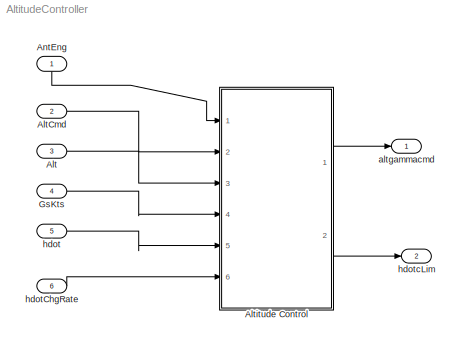
MODEL AltitudeController
KIND model
BLOCK [Inport] Alt
  IconDisplay = Port number
  OutDataTypeStr = double
  Port = 3
  SID = 3
  SignalType = real
BLOCK [Inport] AltCmd
  IconDisplay = Port number
  OutDataTypeStr = double
  Port = 2
  SID = 2
  SignalType = real
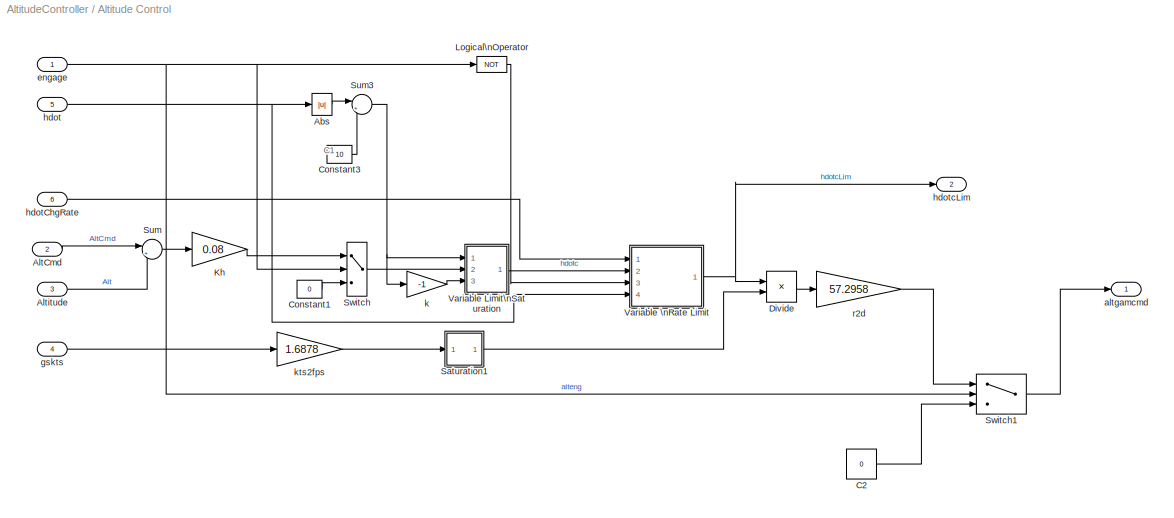
BLOCK [SubSystem] Altitude Control
  Ports = [6, 2]
  RequestExecContextInheritance = off
  SID = 7
  Variant = off
BLOCK [Abs] Altitude Control/Abs
  SID = 14
BLOCK [Inport] Altitude Control/AltCmd
  IconDisplay = Port number
  Port = 2
  SID = 9
BLOCK [Inport] Altitude Control/Altitude
  IconDisplay = Port number
  Port = 3
  SID = 10
BLOCK [Constant] Altitude Control/C2
  SID = 15
  Value = 0
BLOCK [Constant] Altitude Control/Constant1
  SID = 16
  Value = 0
BLOCK [Constant] Altitude Control/Constant3
  SID = 17
  Value = 10
BLOCK [Product] Altitude Control/Divide
  InputSameDT = off
  Inputs = */
  OutDataTypeStr = Inherit: Inherit via internal rule
  Ports = [2, 1]
  RndMeth = Floor
  SID = 18
  SaturateOnIntegerOverflow = off
BLOCK [Gain] Altitude Control/Kh
  Gain = 0.08
  OutDataTypeStr = Inherit: Inherit via internal rule
  ParamDataTypeStr = Inherit: Inherit via internal rule
  SID = 19
  SaturateOnIntegerOverflow = off
BLOCK [Logic] Altitude Control/Logical\nOperator
  Operator = NOT
  Ports = [1, 1]
  SID = 20
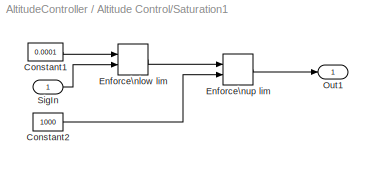
BLOCK [SubSystem] Altitude Control/Saturation1
  Ports = [1, 1]
  RequestExecContextInheritance = off
  SID = 21
  TreatAsAtomicUnit = on
  Variant = off
BLOCK [Constant] Altitude Control/Saturation1/Constant1
  SID = 23
  Value = 0.0001
BLOCK [Constant] Altitude Control/Saturation1/Constant2
  SID = 24
  Value = 1000
BLOCK [MinMax] Altitude Control/Saturation1/Enforce\nlow lim
  Function = max
  InputSameDT = off
  Inputs = 2
  Ports = [2, 1]
  SID = 25
  SaturateOnIntegerOverflow = off
BLOCK [MinMax] Altitude Control/Saturation1/Enforce\nup lim
  InputSameDT = off
  Inputs = 2
  Ports = [2, 1]
  SID = 26
  SaturateOnIntegerOverflow = off
BLOCK [Outport] Altitude Control/Saturation1/Out1
  IconDisplay = Port number
  SID = 27
BLOCK [Inport] Altitude Control/Saturation1/SigIn
  IconDisplay = Port number
  SID = 22
BLOCK [Sum] Altitude Control/Sum
  IconShape = round
  InputSameDT = off
  Inputs = |+-
  OutDataTypeStr = Inherit: Inherit via internal rule
  Ports = [2, 1]
  SID = 28
  SaturateOnIntegerOverflow = off
BLOCK [Sum] Altitude Control/Sum3
  IconShape = round
  Inputs = |++
  Ports = [2, 1]
  SID = 29
BLOCK [Switch] Altitude Control/Switch
  InputSameDT = off
  SID = 30
  SaturateOnIntegerOverflow = off
BLOCK [Switch] Altitude Control/Switch1
  Criteria = u2 > Threshold
  InputSameDT = off
  SID = 31
  SaturateOnIntegerOverflow = off
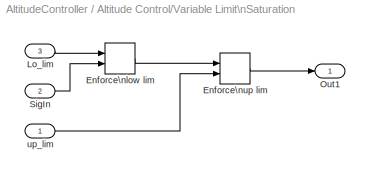
BLOCK [SubSystem] Altitude Control/Variable Limit\nSaturation
  Ports = [3, 1]
  RequestExecContextInheritance = off
  SID = 49
  TreatAsAtomicUnit = on
  Variant = off
BLOCK [MinMax] Altitude Control/Variable Limit\nSaturation/Enforce\nlow lim
  Function = max
  InputSameDT = off
  Inputs = 2
  Ports = [2, 1]
  SID = 53
  SaturateOnIntegerOverflow = off
BLOCK [MinMax] Altitude Control/Variable Limit\nSaturation/Enforce\nup lim
  InputSameDT = off
  Inputs = 2
  Ports = [2, 1]
  SID = 54
  SaturateOnIntegerOverflow = off
BLOCK [Inport] Altitude Control/Variable Limit\nSaturation/Lo_lim
  IconDisplay = Port number
  Port = 3
  SID = 52
BLOCK [Outport] Altitude Control/Variable Limit\nSaturation/Out1
  IconDisplay = Port number
  SID = 55
BLOCK [Inport] Altitude Control/Variable Limit\nSaturation/SigIn
  IconDisplay = Port number
  Port = 2
  SID = 51
BLOCK [Inport] Altitude Control/Variable Limit\nSaturation/up_lim
  IconDisplay = Port number
  SID = 50
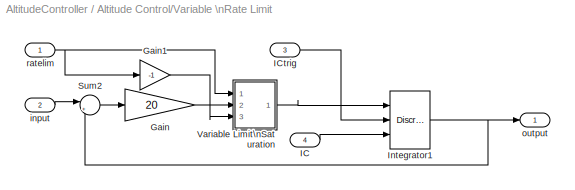
BLOCK [SubSystem] Altitude Control/Variable \nRate Limit
  Ports = [4, 1]
  RequestExecContextInheritance = off
  SID = 32
  TreatAsAtomicUnit = on
  Variant = off
BLOCK [Gain] Altitude Control/Variable \nRate Limit/Gain
  Gain = 20
  SID = 37
BLOCK [Gain] Altitude Control/Variable \nRate Limit/Gain1
  Gain = -1
  SID = 38
BLOCK [Inport] Altitude Control/Variable \nRate Limit/IC
  IconDisplay = Port number
  Port = 4
  SID = 36
BLOCK [Inport] Altitude Control/Variable \nRate Limit/ICtrig
  IconDisplay = Port number
  Port = 3
  SID = 35
BLOCK [DiscreteIntegrator] Altitude Control/Variable \nRate Limit/Integrator1
  ExternalReset = level
  ICPrevOutput = DiscIntNeverNeededParam
  ICPrevScaledInput = DiscIntNeverNeededParam
  InitialConditionSource = external
  Ports = [3, 1]
  SID = 39
  SampleTime = 0.1
BLOCK [Sum] Altitude Control/Variable \nRate Limit/Sum2
  IconShape = round
  InputSameDT = off
  Inputs = |+-
  OutDataTypeStr = Inherit: Inherit via internal rule
  Ports = [2, 1]
  SID = 40
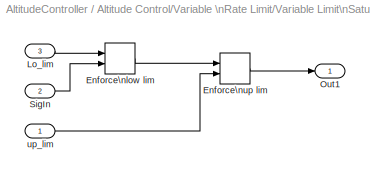
BLOCK [SubSystem] Altitude Control/Variable \nRate Limit/Variable Limit\nSaturation
  Ports = [3, 1]
  RequestExecContextInheritance = off
  SID = 41
  TreatAsAtomicUnit = on
  Variant = off
BLOCK [MinMax] Altitude Control/Variable \nRate Limit/Variable Limit\nSaturation/Enforce\nlow lim
  Function = max
  InputSameDT = off
  Inputs = 2
  Ports = [2, 1]
  SID = 45
  SaturateOnIntegerOverflow = off
BLOCK [MinMax] Altitude Control/Variable \nRate Limit/Variable Limit\nSaturation/Enforce\nup lim
  InputSameDT = off
  Inputs = 2
  Ports = [2, 1]
  SID = 46
  SaturateOnIntegerOverflow = off
BLOCK [Inport] Altitude Control/Variable \nRate Limit/Variable Limit\nSaturation/Lo_lim
  IconDisplay = Port number
  Port = 3
  SID = 44
BLOCK [Outport] Altitude Control/Variable \nRate Limit/Variable Limit\nSaturation/Out1
  IconDisplay = Port number
  SID = 47
BLOCK [Inport] Altitude Control/Variable \nRate Limit/Variable Limit\nSaturation/SigIn
  IconDisplay = Port number
  Port = 2
  SID = 43
BLOCK [Inport] Altitude Control/Variable \nRate Limit/Variable Limit\nSaturation/up_lim
  IconDisplay = Port number
  SID = 42
BLOCK [Inport] Altitude Control/Variable \nRate Limit/input
  IconDisplay = Port number
  OutDataTypeStr = double
  Port = 2
  SID = 34
BLOCK [Outport] Altitude Control/Variable \nRate Limit/output
  IconDisplay = Port number
  SID = 48
BLOCK [Inport] Altitude Control/Variable \nRate Limit/ratelim
  IconDisplay = Port number
  SID = 33
BLOCK [Outport] Altitude Control/altgamcmd
  IconDisplay = Port number
  SID = 59
BLOCK [Inport] Altitude Control/engage
  IconDisplay = Port number
  SID = 8
BLOCK [Inport] Altitude Control/gskts
  IconDisplay = Port number
  Port = 4
  SID = 11
BLOCK [Inport] Altitude Control/hdot
  IconDisplay = Port number
  Port = 5
  SID = 12
BLOCK [Inport] Altitude Control/hdotChgRate
  IconDisplay = Port number
  Port = 6
  SID = 13
BLOCK [Outport] Altitude Control/hdotcLim
  IconDisplay = Port number
  Port = 2
  SID = 62
BLOCK [Gain] Altitude Control/k
  Gain = -1
  OutDataTypeStr = Inherit: Inherit via internal rule
  ParamDataTypeStr = Inherit: Inherit via internal rule
  SID = 56
  SaturateOnIntegerOverflow = off
BLOCK [Gain] Altitude Control/kts2fps
  Gain = 1.6878
  OutDataTypeStr = Inherit: Inherit via internal rule
  ParamDataTypeStr = Inherit: Inherit via internal rule
  SID = 57
  SaturateOnIntegerOverflow = off
BLOCK [Gain] Altitude Control/r2d
  Gain = 57.2958
  OutDataTypeStr = Inherit: Inherit via internal rule
  ParamDataTypeStr = Inherit: Inherit via internal rule
  SID = 58
  SaturateOnIntegerOverflow = off
BLOCK [Inport] AntEng
  IconDisplay = Port number
  OutDataTypeStr = boolean
  SID = 1
BLOCK [Inport] GsKts
  IconDisplay = Port number
  OutDataTypeStr = double
  Port = 4
  SID = 4
  SignalType = real
BLOCK [Outport] altgammacmd
  IconDisplay = Port number
  SID = 61
BLOCK [Inport] hdot
  IconDisplay = Port number
  OutDataTypeStr = double
  Port = 5
  SID = 5
  SignalType = real
BLOCK [Inport] hdotChgRate
  IconDisplay = Port number
  OutDataTypeStr = double
  Port = 6
  SID = 6
  SignalType = real
BLOCK [Outport] hdotcLim
  IconDisplay = Port number
  Port = 2
  SID = 63
ANNOTATION Altitude Control: C1
LINE Alt:1 -> Altitude Control:3
LINE AltCmd:1 -> Altitude Control:2
LINE Altitude Control/Abs:1 -> Altitude Control/Sum3:1
LINE Altitude Control/AltCmd:1 -> Altitude Control/Sum:1
LINE Altitude Control/Altitude:1 -> Altitude Control/Sum:2
LINE Altitude Control/C2:1 -> Altitude Control/Switch1:3
LINE Altitude Control/Constant1:1 -> Altitude Control/Switch:3
LINE Altitude Control/Constant3:1 -> Altitude Control/Sum3:2
LINE Altitude Control/Divide:1 -> Altitude Control/r2d:1
LINE Altitude Control/Kh:1 -> Altitude Control/Switch:1
LINE Altitude Control/Logical\nOperator:1 -> Altitude Control/Variable \nRate Limit:3
LINE Altitude Control/Saturation1/Constant1:1 -> Altitude Control/Saturation1/Enforce\nlow lim:1
LINE Altitude Control/Saturation1/Constant2:1 -> Altitude Control/Saturation1/Enforce\nup lim:2
LINE Altitude Control/Saturation1/Enforce\nlow lim:1 -> Altitude Control/Saturation1/Enforce\nup lim:1
LINE Altitude Control/Saturation1/Enforce\nup lim:1 -> Altitude Control/Saturation1/Out1:1
LINE Altitude Control/Saturation1/SigIn:1 -> Altitude Control/Saturation1/Enforce\nlow lim:2
LINE Altitude Control/Saturation1:1 -> Altitude Control/Divide:2
NET Altitude Control/Sum3:1 -> Altitude Control/Variable Limit\nSaturation:1, Altitude Control/k:1
LINE Altitude Control/Sum:1 -> Altitude Control/Kh:1
LINE Altitude Control/Switch1:1 -> Altitude Control/altgamcmd:1
LINE Altitude Control/Switch:1 -> Altitude Control/Variable Limit\nSaturation:2
LINE Altitude Control/Variable Limit\nSaturation/Enforce\nlow lim:1 -> Altitude Control/Variable Limit\nSaturation/Enforce\nup lim:1
LINE Altitude Control/Variable Limit\nSaturation/Enforce\nup lim:1 -> Altitude Control/Variable Limit\nSaturation/Out1:1
LINE Altitude Control/Variable Limit\nSaturation/Lo_lim:1 -> Altitude Control/Variable Limit\nSaturation/Enforce\nlow lim:1
LINE Altitude Control/Variable Limit\nSaturation/SigIn:1 -> Altitude Control/Variable Limit\nSaturation/Enforce\nlow lim:2
LINE Altitude Control/Variable Limit\nSaturation/up_lim:1 -> Altitude Control/Variable Limit\nSaturation/Enforce\nup lim:2
LINE Altitude Control/Variable Limit\nSaturation:1 -> Altitude Control/Variable \nRate Limit:2
LINE Altitude Control/Variable \nRate Limit/Gain1:1 -> Altitude Control/Variable \nRate Limit/Variable Limit\nSaturation:3
LINE Altitude Control/Variable \nRate Limit/Gain:1 -> Altitude Control/Variable \nRate Limit/Variable Limit\nSaturation:2
LINE Altitude Control/Variable \nRate Limit/IC:1 -> Altitude Control/Variable \nRate Limit/Integrator1:3
LINE Altitude Control/Variable \nRate Limit/ICtrig:1 -> Altitude Control/Variable \nRate Limit/Integrator1:2
NET Altitude Control/Variable \nRate Limit/Integrator1:1 -> Altitude Control/Variable \nRate Limit/Sum2:2, Altitude Control/Variable \nRate Limit/output:1
LINE Altitude Control/Variable \nRate Limit/Sum2:1 -> Altitude Control/Variable \nRate Limit/Gain:1
LINE Altitude Control/Variable \nRate Limit/Variable Limit\nSaturation/Enforce\nlow lim:1 -> Altitude Control/Variable \nRate Limit/Variable Limit\nSaturation/Enforce\nup lim:1
LINE Altitude Control/Variable \nRate Limit/Variable Limit\nSaturation/Enforce\nup lim:1 -> Altitude Control/Variable \nRate Limit/Variable Limit\nSaturation/Out1:1
LINE Altitude Control/Variable \nRate Limit/Variable Limit\nSaturation/Lo_lim:1 -> Altitude Control/Variable \nRate Limit/Variable Limit\nSaturation/Enforce\nlow lim:1
LINE Altitude Control/Variable \nRate Limit/Variable Limit\nSaturation/SigIn:1 -> Altitude Control/Variable \nRate Limit/Variable Limit\nSaturation/Enforce\nlow lim:2
LINE Altitude Control/Variable \nRate Limit/Variable Limit\nSaturation/up_lim:1 -> Altitude Control/Variable \nRate Limit/Variable Limit\nSaturation/Enforce\nup lim:2
LINE Altitude Control/Variable \nRate Limit/Variable Limit\nSaturation:1 -> Altitude Control/Variable \nRate Limit/Integrator1:1
LINE Altitude Control/Variable \nRate Limit/input:1 -> Altitude Control/Variable \nRate Limit/Sum2:1
NET Altitude Control/Variable \nRate Limit/ratelim:1 -> Altitude Control/Variable \nRate Limit/Gain1:1, Altitude Control/Variable \nRate Limit/Variable Limit\nSaturation:1
NET Altitude Control/Variable \nRate Limit:1 -> Altitude Control/Divide:1, Altitude Control/hdotcLim:1
NET Altitude Control/engage:1 -> Altitude Control/Logical\nOperator:1, Altitude Control/Switch1:2, Altitude Control/Switch:2
LINE Altitude Control/gskts:1 -> Altitude Control/kts2fps:1
NET Altitude Control/hdot:1 -> Altitude Control/Abs:1, Altitude Control/Variable \nRate Limit:4
LINE Altitude Control/hdotChgRate:1 -> Altitude Control/Variable \nRate Limit:1
LINE Altitude Control/k:1 -> Altitude Control/Variable Limit\nSaturation:3
LINE Altitude Control/kts2fps:1 -> Altitude Control/Saturation1:1
LINE Altitude Control/r2d:1 -> Altitude Control/Switch1:1
LINE Altitude Control:1 -> altgammacmd:1
LINE Altitude Control:2 -> hdotcLim:1
LINE AntEng:1 -> Altitude Control:1
LINE GsKts:1 -> Altitude Control:4
LINE hdot:1 -> Altitude Control:5
LINE hdotChgRate:1 -> Altitude Control:6
note: NET lines group one-source signal fan-out (src -> all destinations, sorted); 1:1 wires keep LINE
